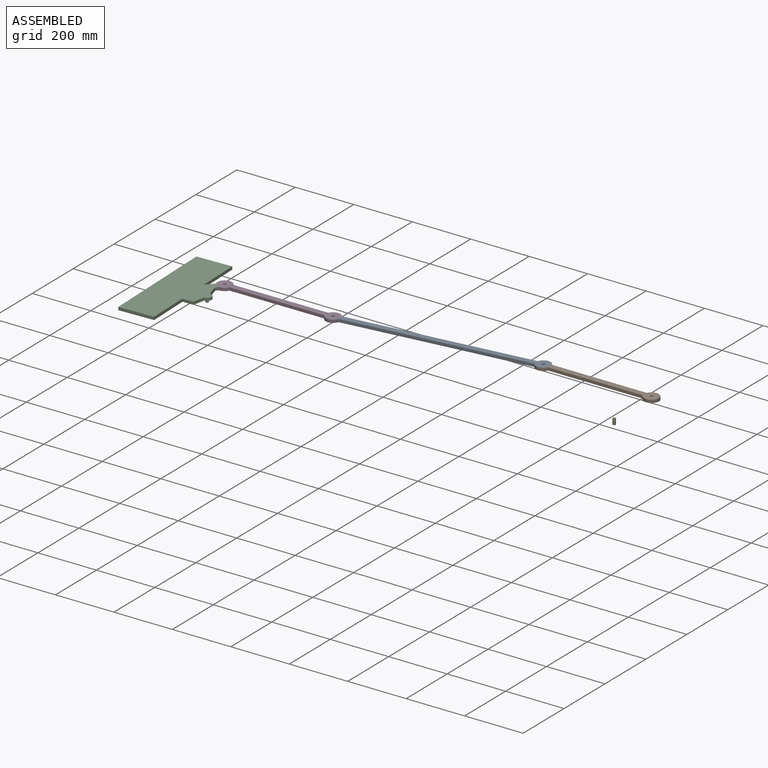
[diagram: assembled view]
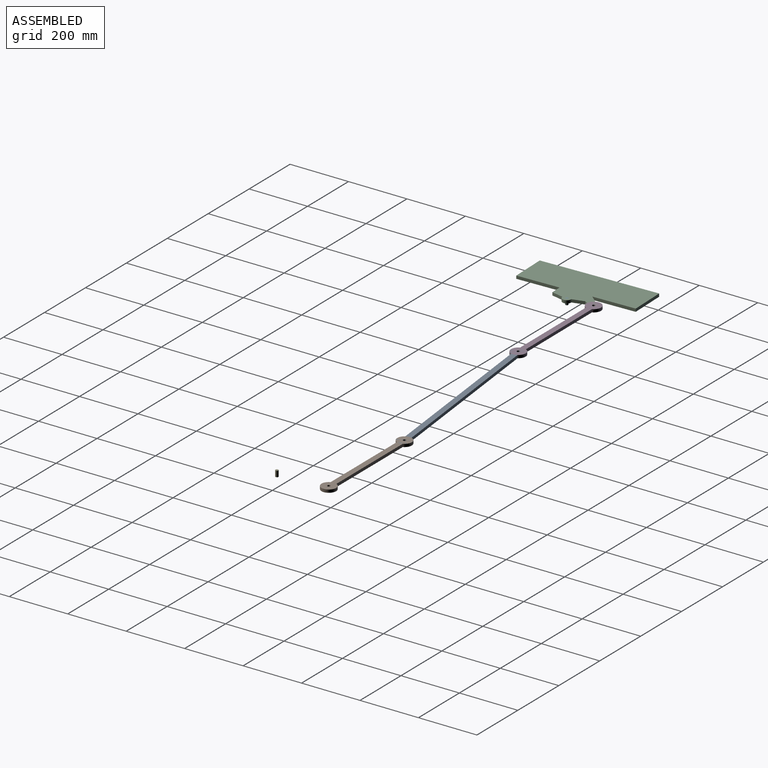
[diagram: assembled view, second angle]
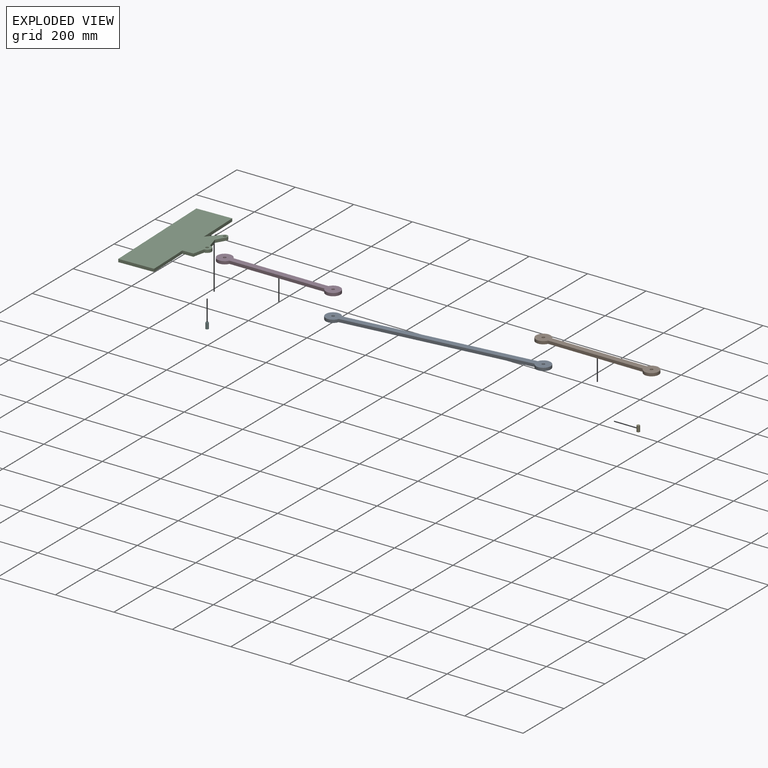
[diagram: exploded view]
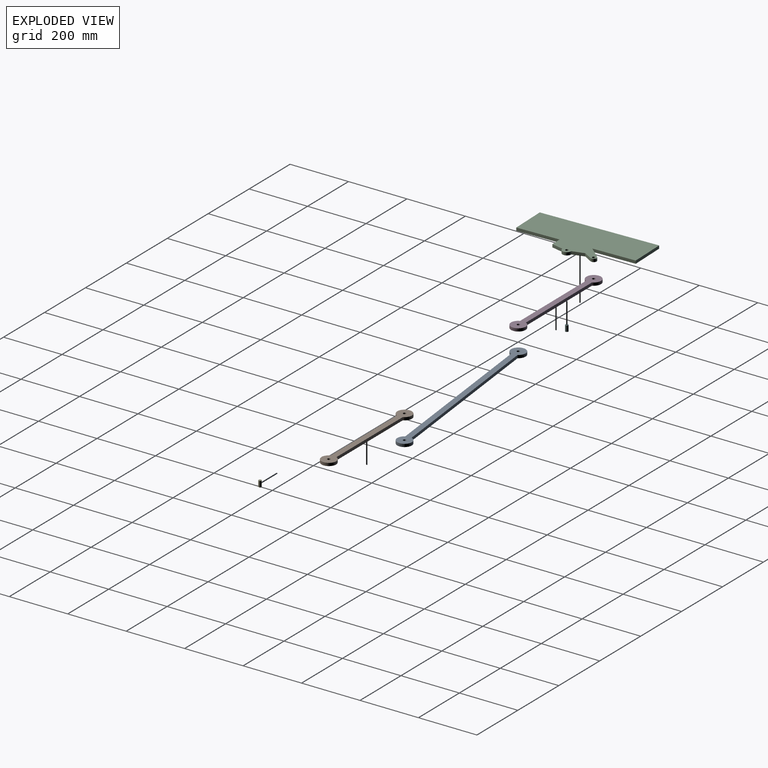
[diagram: exploded view, second angle]
ASSEMBLY  parts=6 mates=4
PART A: 8 faces, bbox 720x50x10 mm
  f0: cylinder r=25mm len=50mm, axis (0,0,-1), area 1365mm2, adj f1,f3,f4,f5
  f1: plane 624.17x10mm, normal (0,-1,0), area 6241.7mm2, adj f0,f2,f4,f5
  f2: cylinder r=25mm len=50mm, axis (0,0,-1), area 1365mm2, adj f1,f3,f4,f5
  f3: plane 624.17x10mm, normal (0,1,0), area 6241.7mm2, adj f0,f2,f4,f5
  f4: plane 720x50mm, normal (0,0,1), area 16197.3mm2, adj f0,f1,f2,f3,f6,f7
  f5: plane 720x50mm, normal (0,0,-1), area 16197.3mm2, adj f0,f1,f2,f3,f6,f7
  f6: cylinder r=5mm len=10mm, axis (0,0,-1), area 314.2mm2, adj f4,f5
  f7: cylinder r=5mm len=10mm, axis (0,0,-1), area 314.2mm2, adj f4,f5
PART B: 8 faces, bbox 420x50x10 mm
  f0: cylinder r=25mm len=50mm, axis (0,0,-1), area 1365mm2, adj f1,f3,f4,f5
  f1: plane 324.17x10mm, normal (0,-1,0), area 3241.7mm2, adj f0,f2,f4,f5
  f2: cylinder r=25mm len=50mm, axis (0,0,-1), area 1365mm2, adj f1,f3,f4,f5
  f3: plane 324.17x10mm, normal (0,1,0), area 3241.7mm2, adj f0,f2,f4,f5
  f4: plane 420x50mm, normal (0,0,1), area 10197.3mm2, adj f0,f1,f2,f3,f6,f7
  f5: plane 420x50mm, normal (0,0,-1), area 10197.3mm2, adj f0,f1,f2,f3,f6,f7
  f6: cylinder r=5mm len=10mm, axis (0,0,-1), area 314.2mm2, adj f4,f5
  f7: cylinder r=5mm len=10mm, axis (0,0,-1), area 314.2mm2, adj f4,f5
PART C: 16 faces, bbox 181.9x400x10 mm
  f0: cylinder r=15mm len=30mm, axis (0,0,-1), area 471.2mm2, adj f1,f11,f12,f13
  f1: plane 40x10.14mm, normal (0.97,0.25,0), area 412.6mm2, adj f0,f2,f12,f13
  f2: plane 29.69x18.61mm, normal (0.85,-0.53,0), area 350.4mm2, adj f1,f3,f12,f13
  f3: cylinder r=10mm len=17.26mm, axis (0,0,-1), area 294.4mm2, adj f2,f4,f12,f13
  f4: plane 41.87x39.64mm, normal (-0.73,0.69,0), area 576.6mm2, adj f3,f5,f12,f13
  f5: plane 145x10mm, normal (1,0,0), area 1450mm2, adj f4,f6,f12,f13
  f6: plane 120x10mm, normal (0,1,0), area 1200mm2, adj f5,f7,f12,f13
  f7: plane 400x10mm, normal (-1,0,0), area 4000mm2, adj f6,f8,f12,f13
  f8: plane 120x10mm, normal (0,-1,0), area 1200mm2, adj f7,f9,f12,f13
  f9: plane 145x10mm, normal (1,0,0), area 1450mm2, adj f8,f10,f12,f13
  f10: plane 36.77x10mm, normal (0,-1,0), area 367.7mm2, adj f9,f11,f12,f13
  f11: plane 40x10.14mm, normal (0.97,-0.25,0), area 412.6mm2, adj f0,f10,f12,f13
  f12: plane 400x181.9mm, normal (0,0,1), area 54204.2mm2, adj f0,f1,f2,f3,f4,f5,f6,f7
  f13: plane 400x181.9mm, normal (0,0,-1), area 54204.2mm2, adj f0,f1,f2,f3,f4,f5,f6,f7
  f14: cylinder r=5mm len=10mm, axis (0,0,-1), area 314.2mm2, adj f12,f13
  f15: cylinder r=5mm len=10mm, axis (0,0,-1), area 314.2mm2, adj f12,f13
PART D: same geometry as B
PART E: 3 faces, bbox 10x10x20 mm
  f0: cylinder r=5mm len=20mm, axis (0,0,-1), area 628.3mm2, adj f1,f2
  f1: plane 10x10mm, normal (0,0,1), area 78.5mm2, adj f0
  f2: plane 10x10mm, normal (0,0,-1), area 78.5mm2, adj f0
PART F: same geometry as E
PLACE A rot(axis=(0,0,1),6.6deg) t=(608.42,-27.25,0)mm
PLACE B t=(1126.22,11.13,0)mm
PLACE C rot(axis=(0,0,1),1.8deg) t=(-91.55,-156.75,0)mm
PLACE D rot(axis=(0,0,1),0.2deg) t=(90.63,-66.21,0)mm
PLACE E t=(1309,-168,0)mm
PLACE F t=(-91.55,-156.75,0)mm fixed
MATE revolute C.f14 <-> D.f0  axis (0,0,1) through (-94.37,-66.8,10)mm
MATE revolute B.f0 <-> A.f2  axis (0,0,1) through (941.22,11.13,10)mm
MATE revolute C.f0 <-> F.f0  axis (0,0,1) through (-91.55,-156.75,10)mm
MATE revolute D.f2 <-> A.f6  axis (0,0,1) through (275.63,-65.63,10)mm
